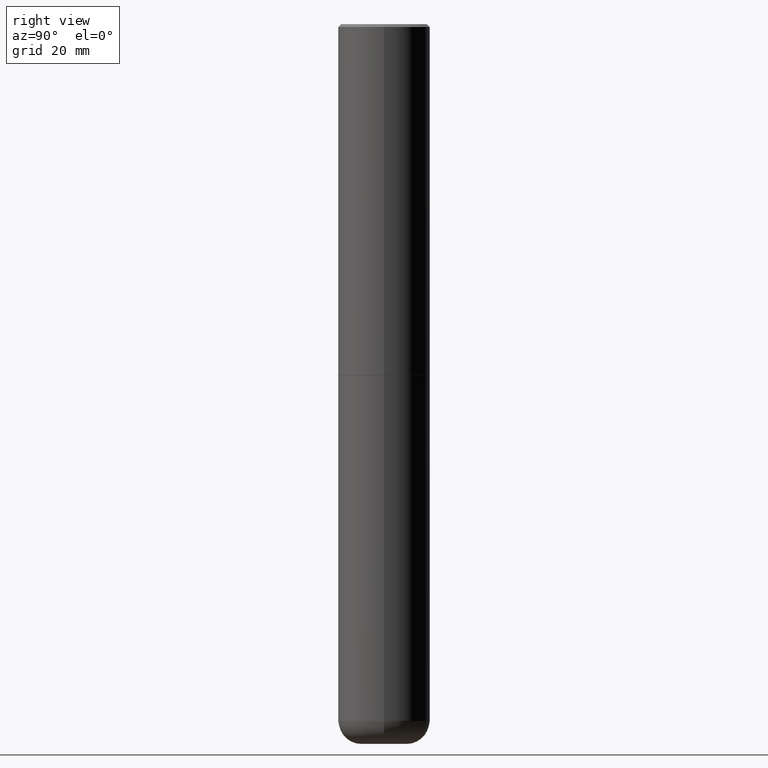
[diagram: clean part render]
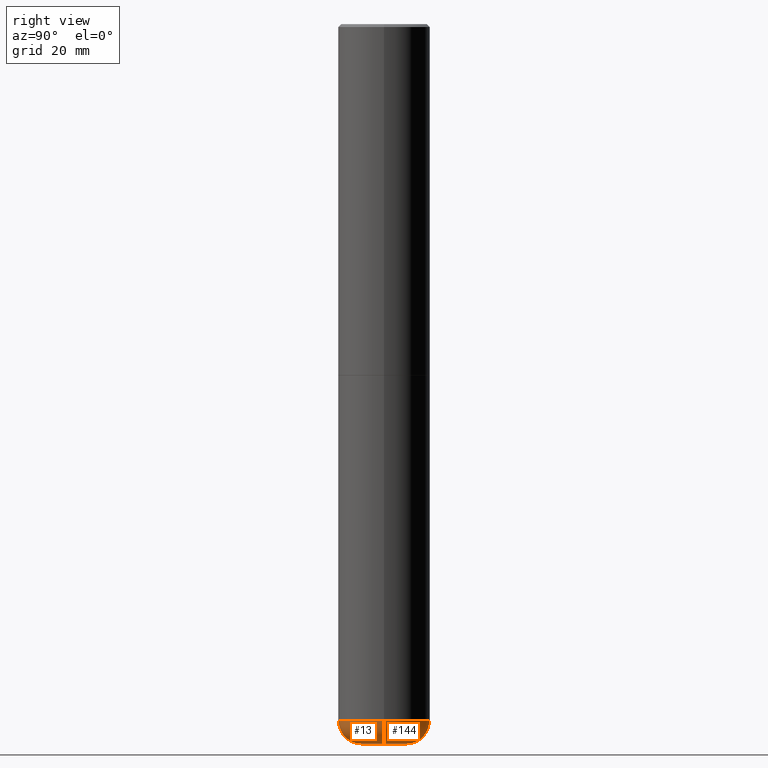
[diagram: same view with one multi-face feature highlighted, each face labeled with its STEP entity id]
A machine part, right view. The highlighted faces form ONE feature: a constant-radius fillet chain: 2 tangent blend faces with common blend radius 4.0005 mm. The faces share edges in the B-rep.
Their STEP definitions:
[1] entity #144 (Torus):
#16 = AXIS2_PLACEMENT_3D ( 'NONE', #286, #324, #230 ) ;
#27 = ORIENTED_EDGE ( 'NONE', *, *, #366, .T. ) ;
#29 = CARTESIAN_POINT ( 'NONE',  ( -0.3149500000000003408, -1.439486445570453933E-14, -4.763799999999999812 ) ) ;
#32 = ORIENTED_EDGE ( 'NONE', *, *, #174, .T. ) ;
#70 = CARTESIAN_POINT ( 'NONE',  ( -0.1574500000000000621, -1.522937101554951638E-14, -4.921300000000000452 ) ) ;
#97 = CIRCLE ( 'NONE', #337, 0.1575000000000006672 ) ;
#100 = DIRECTION ( 'NONE',  ( 1.000000000000000000, -6.982962677686266711E-15, 4.883557194083112901E-29 ) ) ;
#104 = CARTESIAN_POINT ( 'NONE',  ( 1.164972429890475298E-28, -1.663271880198097531E-14, -4.763799999999999812 ) ) ;
#116 = CARTESIAN_POINT ( 'NONE',  ( 0.3149500000000003408, -1.883200289731826676E-14, -4.763799999999999812 ) ) ;
#120 = VERTEX_POINT ( 'NONE', #70 ) ;
#144 = ADVANCED_FACE ( 'NONE', ( #384 ), #265, .T. ) ;
#146 = DIRECTION ( 'NONE',  ( 7.105427357601001859E-15, 1.000000000000000000, -3.491481338843145583E-15 ) ) ;
#147 = CIRCLE ( 'NONE', #290, 0.1575000000000006672 ) ;
#148 = CIRCLE ( 'NONE', #16, 0.1574500000000000621 ) ;
#174 = EDGE_CURVE ( 'NONE', #264, #120, #148, .T. ) ;
#178 = AXIS2_PLACEMENT_3D ( 'NONE', #104, #400, #335 ) ;
#181 = CARTESIAN_POINT ( 'NONE',  ( -0.1574500000000000066, -1.551396926452669851E-14, -4.763799999999999812 ) ) ;
#183 = DIRECTION ( 'NONE',  ( -1.000000000000000000, 7.105427357601005014E-15, 0.000000000000000000 ) ) ;
#185 = CIRCLE ( 'NONE', #178, 0.3149500000000000077 ) ;
#187 = EDGE_CURVE ( 'NONE', #264, #349, #147, .T. ) ;
#194 = ORIENTED_EDGE ( 'NONE', *, *, #246, .F. ) ;
#196 = CARTESIAN_POINT ( 'NONE',  ( 1.164972429890475298E-28, -1.663271880198097531E-14, -4.763799999999999812 ) ) ;
#198 = DIRECTION ( 'NONE',  ( -6.982962677686266711E-15, -1.000000000000000000, 3.491481338843145583E-15 ) ) ;
#210 = CARTESIAN_POINT ( 'NONE',  ( 0.1574500000000000621, -1.828209458645048130E-14, -4.921300000000000452 ) ) ;
#227 = VERTEX_POINT ( 'NONE', #29 ) ;
#230 = DIRECTION ( 'NONE',  ( 1.000000000000000000, -6.982962677686276177E-15, 0.000000000000000000 ) ) ;
#232 = DIRECTION ( 'NONE',  ( -2.445468806185136597E-29, 3.491481338843145583E-15, 1.000000000000000000 ) ) ;
#246 = EDGE_CURVE ( 'NONE', #349, #227, #185, .T. ) ;
#264 = VERTEX_POINT ( 'NONE', #210 ) ;
#265 = TOROIDAL_SURFACE ( 'NONE', #306, 0.1574500000000000066, 0.1575000000000006395 ) ;
#269 = CARTESIAN_POINT ( 'NONE',  ( 0.1574500000000000066, -1.773218627558268007E-14, -4.763799999999999812 ) ) ;
#286 = CARTESIAN_POINT ( 'NONE',  ( 1.203488563587891594E-28, -1.718262711284877655E-14, -4.921300000000000452 ) ) ;
#290 = AXIS2_PLACEMENT_3D ( 'NONE', #269, #198, #413 ) ;
#306 = AXIS2_PLACEMENT_3D ( 'NONE', #196, #232, #100 ) ;
#324 = DIRECTION ( 'NONE',  ( -2.445468806185136597E-29, 3.491481338843145583E-15, 1.000000000000000000 ) ) ;
#335 = DIRECTION ( 'NONE',  ( 1.000000000000000000, -6.982962677686269866E-15, 0.000000000000000000 ) ) ;
#337 = AXIS2_PLACEMENT_3D ( 'NONE', #181, #146, #183 ) ;
#349 = VERTEX_POINT ( 'NONE', #116 ) ;
#366 = EDGE_CURVE ( 'NONE', #120, #227, #97, .T. ) ;
#384 = FACE_OUTER_BOUND ( 'NONE', #389, .T. ) ;
#389 = EDGE_LOOP ( 'NONE', ( #32, #27, #194, #392 ) ) ;
#392 = ORIENTED_EDGE ( 'NONE', *, *, #187, .F. ) ;
#400 = DIRECTION ( 'NONE',  ( -2.445468806185136597E-29, 3.491481338843145583E-15, 1.000000000000000000 ) ) ;
#413 = DIRECTION ( 'NONE',  ( 1.000000000000000000, -6.982962677686256455E-15, 0.000000000000000000 ) ) ;
[2] entity #13 (Torus):
#1 = CARTESIAN_POINT ( 'NONE',  ( 1.164972429890475298E-28, -1.663271880198097531E-14, -4.763799999999999812 ) ) ;
#4 = ORIENTED_EDGE ( 'NONE', *, *, #378, .T. ) ;
#12 = ORIENTED_EDGE ( 'NONE', *, *, #187, .T. ) ;
#13 = ADVANCED_FACE ( 'NONE', ( #40 ), #83, .T. ) ;
#29 = CARTESIAN_POINT ( 'NONE',  ( -0.3149500000000003408, -1.439486445570453933E-14, -4.763799999999999812 ) ) ;
#40 = FACE_OUTER_BOUND ( 'NONE', #382, .T. ) ;
#50 = DIRECTION ( 'NONE',  ( -2.445468806185136597E-29, 3.491481338843145583E-15, 1.000000000000000000 ) ) ;
#51 = CIRCLE ( 'NONE', #325, 0.1574500000000000621 ) ;
#70 = CARTESIAN_POINT ( 'NONE',  ( -0.1574500000000000621, -1.522937101554951638E-14, -4.921300000000000452 ) ) ;
#79 = DIRECTION ( 'NONE',  ( 1.000000000000000000, -6.982962677686266711E-15, 4.883557194083112901E-29 ) ) ;
#83 = TOROIDAL_SURFACE ( 'NONE', #158, 0.1574500000000000066, 0.1575000000000006395 ) ;
#93 = DIRECTION ( 'NONE',  ( -2.445468806185136597E-29, 3.491481338843145583E-15, 1.000000000000000000 ) ) ;
#97 = CIRCLE ( 'NONE', #337, 0.1575000000000006672 ) ;
#112 = EDGE_CURVE ( 'NONE', #227, #349, #347, .T. ) ;
#116 = CARTESIAN_POINT ( 'NONE',  ( 0.3149500000000003408, -1.883200289731826676E-14, -4.763799999999999812 ) ) ;
#120 = VERTEX_POINT ( 'NONE', #70 ) ;
#133 = AXIS2_PLACEMENT_3D ( 'NONE', #1, #93, #418 ) ;
#143 = CARTESIAN_POINT ( 'NONE',  ( 1.164972429890475298E-28, -1.663271880198097531E-14, -4.763799999999999812 ) ) ;
#146 = DIRECTION ( 'NONE',  ( 7.105427357601001859E-15, 1.000000000000000000, -3.491481338843145583E-15 ) ) ;
#147 = CIRCLE ( 'NONE', #290, 0.1575000000000006672 ) ;
#149 = CARTESIAN_POINT ( 'NONE',  ( 1.203488563587891594E-28, -1.718262711284877655E-14, -4.921300000000000452 ) ) ;
#158 = AXIS2_PLACEMENT_3D ( 'NONE', #143, #331, #79 ) ;
#181 = CARTESIAN_POINT ( 'NONE',  ( -0.1574500000000000066, -1.551396926452669851E-14, -4.763799999999999812 ) ) ;
#183 = DIRECTION ( 'NONE',  ( -1.000000000000000000, 7.105427357601005014E-15, 0.000000000000000000 ) ) ;
#187 = EDGE_CURVE ( 'NONE', #264, #349, #147, .T. ) ;
#198 = DIRECTION ( 'NONE',  ( -6.982962677686266711E-15, -1.000000000000000000, 3.491481338843145583E-15 ) ) ;
#199 = ORIENTED_EDGE ( 'NONE', *, *, #112, .F. ) ;
#210 = CARTESIAN_POINT ( 'NONE',  ( 0.1574500000000000621, -1.828209458645048130E-14, -4.921300000000000452 ) ) ;
#227 = VERTEX_POINT ( 'NONE', #29 ) ;
#264 = VERTEX_POINT ( 'NONE', #210 ) ;
#269 = CARTESIAN_POINT ( 'NONE',  ( 0.1574500000000000066, -1.773218627558268007E-14, -4.763799999999999812 ) ) ;
#290 = AXIS2_PLACEMENT_3D ( 'NONE', #269, #198, #413 ) ;
#313 = DIRECTION ( 'NONE',  ( 1.000000000000000000, -6.982962677686276177E-15, 0.000000000000000000 ) ) ;
#325 = AXIS2_PLACEMENT_3D ( 'NONE', #149, #50, #313 ) ;
#331 = DIRECTION ( 'NONE',  ( -2.445468806185136597E-29, 3.491481338843145583E-15, 1.000000000000000000 ) ) ;
#337 = AXIS2_PLACEMENT_3D ( 'NONE', #181, #146, #183 ) ;
#347 = CIRCLE ( 'NONE', #133, 0.3149500000000000077 ) ;
#349 = VERTEX_POINT ( 'NONE', #116 ) ;
#360 = ORIENTED_EDGE ( 'NONE', *, *, #366, .F. ) ;
#366 = EDGE_CURVE ( 'NONE', #120, #227, #97, .T. ) ;
#378 = EDGE_CURVE ( 'NONE', #120, #264, #51, .T. ) ;
#382 = EDGE_LOOP ( 'NONE', ( #360, #4, #12, #199 ) ) ;
#413 = DIRECTION ( 'NONE',  ( 1.000000000000000000, -6.982962677686256455E-15, 0.000000000000000000 ) ) ;
#418 = DIRECTION ( 'NONE',  ( 1.000000000000000000, -6.982962677686269866E-15, 0.000000000000000000 ) ) ;